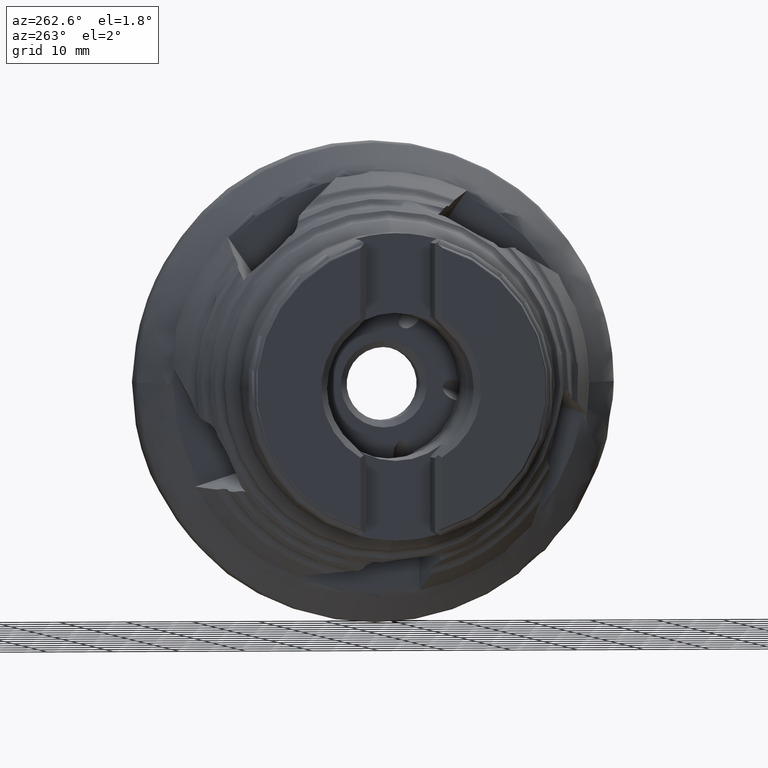
[diagram: clean part render]
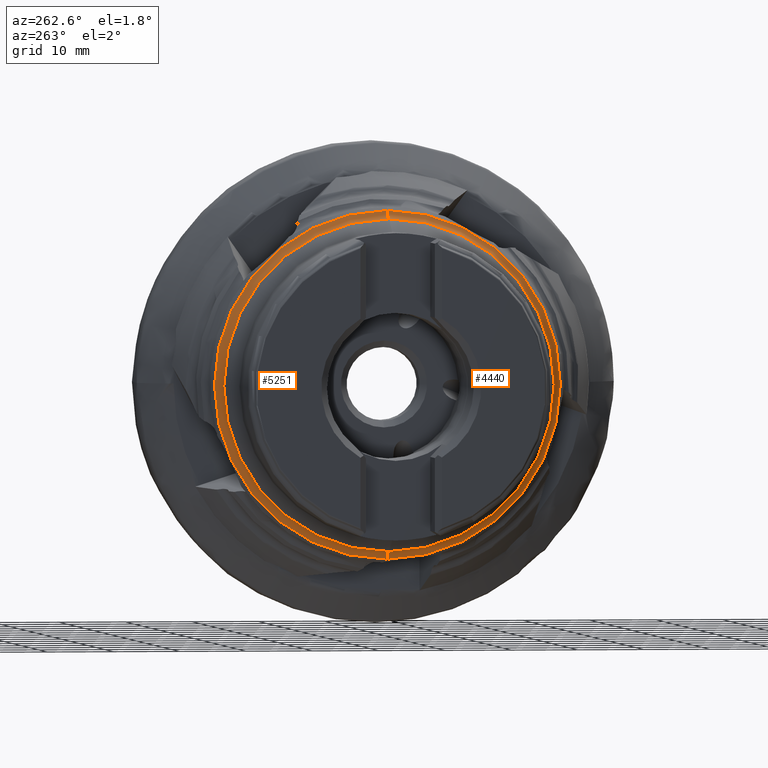
[diagram: same view with one multi-face feature highlighted, each face labeled with its STEP entity id]
A machine part, auxiliary view. The highlighted faces form ONE feature: a constant-radius fillet chain: 2 tangent blend faces with common blend radius 1.5 mm. The faces share edges in the B-rep.
Their STEP definitions:
[1] entity #4440 (Torus):
#153 = CARTESIAN_POINT ( 'NONE',  ( -24.57434516386887000, 3.046841316255686500E-015, 24.87934740348822200 ) ) ;
#503 = AXIS2_PLACEMENT_3D ( 'NONE', #6978, #5183, #3905 ) ;
#533 = CIRCLE ( 'NONE', #6831, 1.499999999999994400 ) ;
#620 = CARTESIAN_POINT ( 'NONE',  ( -24.57434516386887000, 3.230538336127788800E-015, 26.37934740348821400 ) ) ;
#831 = DIRECTION ( 'NONE',  ( 0.0000000000000000000, 0.0000000000000000000, -1.000000000000000000 ) ) ;
#887 = ORIENTED_EDGE ( 'NONE', *, *, #2133, .T. ) ;
#951 = CARTESIAN_POINT ( 'NONE',  ( -24.57434516386887000, 0.0000000000000000000, 0.0000000000000000000 ) ) ;
#1005 = VERTEX_POINT ( 'NONE', #153 ) ;
#1013 = VERTEX_POINT ( 'NONE', #4459 ) ;
#1166 = DIRECTION ( 'NONE',  ( 1.000000000000000000, -0.0000000000000000000, -0.0000000000000000000 ) ) ;
#1268 = ORIENTED_EDGE ( 'NONE', *, *, #5620, .T. ) ;
#1304 = DIRECTION ( 'NONE',  ( 0.0000000000000000000, 1.000000000000000000, -1.224646799147353200E-016 ) ) ;
#2133 = EDGE_CURVE ( 'NONE', #1013, #1005, #533, .T. ) ;
#2199 = CIRCLE ( 'NONE', #4613, 24.87934740348822200 ) ;
#2201 = ORIENTED_EDGE ( 'NONE', *, *, #7736, .F. ) ;
#2392 = CIRCLE ( 'NONE', #503, 1.499999999999994400 ) ;
#2519 = DIRECTION ( 'NONE',  ( 0.0000000000000000000, 0.0000000000000000000, -1.000000000000000000 ) ) ;
#2718 = VERTEX_POINT ( 'NONE', #7846 ) ;
#2840 = DIRECTION ( 'NONE',  ( 1.000000000000000000, -0.0000000000000000000, -0.0000000000000000000 ) ) ;
#3377 = AXIS2_PLACEMENT_3D ( 'NONE', #4285, #1166, #2519 ) ;
#3503 = DIRECTION ( 'NONE',  ( 0.0000000000000000000, 0.0000000000000000000, -1.000000000000000000 ) ) ;
#3905 = DIRECTION ( 'NONE',  ( 0.0000000000000000000, 0.0000000000000000000, -1.000000000000000000 ) ) ;
#4073 = AXIS2_PLACEMENT_3D ( 'NONE', #7084, #6492, #831 ) ;
#4134 = FACE_OUTER_BOUND ( 'NONE', #6457, .T. ) ;
#4285 = CARTESIAN_POINT ( 'NONE',  ( -24.57434516386887000, 0.0000000000000000000, 0.0000000000000000000 ) ) ;
#4440 = ADVANCED_FACE ( 'NONE', ( #4134 ), #6503, .F. ) ;
#4459 = CARTESIAN_POINT ( 'NONE',  ( -23.10400000000000600, 3.228893845991298400E-015, 26.08255606418158100 ) ) ;
#4613 = AXIS2_PLACEMENT_3D ( 'NONE', #951, #2840, #3503 ) ;
#4923 = VERTEX_POINT ( 'NONE', #5304 ) ;
#5080 = EDGE_CURVE ( 'NONE', #2718, #4923, #2392, .T. ) ;
#5183 = DIRECTION ( 'NONE',  ( -0.0000000000000000000, -1.000000000000000000, -0.0000000000000000000 ) ) ;
#5304 = CARTESIAN_POINT ( 'NONE',  ( -24.57434516386887000, 0.0000000000000000000, -24.87934740348822200 ) ) ;
#5620 = EDGE_CURVE ( 'NONE', #1005, #4923, #2199, .T. ) ;
#6457 = EDGE_LOOP ( 'NONE', ( #887, #1268, #8117, #2201 ) ) ;
#6492 = DIRECTION ( 'NONE',  ( 1.000000000000000000, -0.0000000000000000000, -0.0000000000000000000 ) ) ;
#6503 = TOROIDAL_SURFACE ( 'NONE', #3377, 26.37934740348821400, 1.499999999999994900 ) ;
#6773 = CIRCLE ( 'NONE', #4073, 26.08255606418158100 ) ;
#6831 = AXIS2_PLACEMENT_3D ( 'NONE', #620, #1304, #6979 ) ;
#6978 = CARTESIAN_POINT ( 'NONE',  ( -24.57434516386887000, 0.0000000000000000000, -26.37934740348821400 ) ) ;
#6979 = DIRECTION ( 'NONE',  ( 0.0000000000000000000, 1.224646799147352500E-016, 1.000000000000000000 ) ) ;
#7084 = CARTESIAN_POINT ( 'NONE',  ( -23.10400000000000600, 0.0000000000000000000, 0.0000000000000000000 ) ) ;
#7736 = EDGE_CURVE ( 'NONE', #1013, #2718, #6773, .T. ) ;
#7846 = CARTESIAN_POINT ( 'NONE',  ( -23.10400000000000600, 0.0000000000000000000, -26.08255606418158100 ) ) ;
#8117 = ORIENTED_EDGE ( 'NONE', *, *, #5080, .F. ) ;
[2] entity #5251 (Torus):
#153 = CARTESIAN_POINT ( 'NONE',  ( -24.57434516386887000, 3.046841316255686500E-015, 24.87934740348822200 ) ) ;
#160 = DIRECTION ( 'NONE',  ( 0.0000000000000000000, 0.0000000000000000000, -1.000000000000000000 ) ) ;
#503 = AXIS2_PLACEMENT_3D ( 'NONE', #6978, #5183, #3905 ) ;
#533 = CIRCLE ( 'NONE', #6831, 1.499999999999994400 ) ;
#620 = CARTESIAN_POINT ( 'NONE',  ( -24.57434516386887000, 3.230538336127788800E-015, 26.37934740348821400 ) ) ;
#655 = AXIS2_PLACEMENT_3D ( 'NONE', #1572, #2282, #1601 ) ;
#718 = AXIS2_PLACEMENT_3D ( 'NONE', #6418, #6330, #3865 ) ;
#1005 = VERTEX_POINT ( 'NONE', #153 ) ;
#1013 = VERTEX_POINT ( 'NONE', #4459 ) ;
#1304 = DIRECTION ( 'NONE',  ( 0.0000000000000000000, 1.000000000000000000, -1.224646799147353200E-016 ) ) ;
#1572 = CARTESIAN_POINT ( 'NONE',  ( -24.57434516386887000, 0.0000000000000000000, 0.0000000000000000000 ) ) ;
#1601 = DIRECTION ( 'NONE',  ( 0.0000000000000000000, 0.0000000000000000000, -1.000000000000000000 ) ) ;
#2024 = EDGE_LOOP ( 'NONE', ( #6246, #2362, #3554, #6262 ) ) ;
#2133 = EDGE_CURVE ( 'NONE', #1013, #1005, #533, .T. ) ;
#2282 = DIRECTION ( 'NONE',  ( 1.000000000000000000, -0.0000000000000000000, -0.0000000000000000000 ) ) ;
#2362 = ORIENTED_EDGE ( 'NONE', *, *, #4703, .T. ) ;
#2392 = CIRCLE ( 'NONE', #503, 1.499999999999994400 ) ;
#2718 = VERTEX_POINT ( 'NONE', #7846 ) ;
#3554 = ORIENTED_EDGE ( 'NONE', *, *, #2133, .F. ) ;
#3865 = DIRECTION ( 'NONE',  ( 0.0000000000000000000, 0.0000000000000000000, -1.000000000000000000 ) ) ;
#3898 = DIRECTION ( 'NONE',  ( 1.000000000000000000, -0.0000000000000000000, -0.0000000000000000000 ) ) ;
#3905 = DIRECTION ( 'NONE',  ( 0.0000000000000000000, 0.0000000000000000000, -1.000000000000000000 ) ) ;
#3907 = FACE_OUTER_BOUND ( 'NONE', #2024, .T. ) ;
#4182 = EDGE_CURVE ( 'NONE', #2718, #1013, #5002, .T. ) ;
#4459 = CARTESIAN_POINT ( 'NONE',  ( -23.10400000000000600, 3.228893845991298400E-015, 26.08255606418158100 ) ) ;
#4703 = EDGE_CURVE ( 'NONE', #4923, #1005, #4821, .T. ) ;
#4821 = CIRCLE ( 'NONE', #655, 24.87934740348822200 ) ;
#4923 = VERTEX_POINT ( 'NONE', #5304 ) ;
#5002 = CIRCLE ( 'NONE', #718, 26.08255606418158100 ) ;
#5080 = EDGE_CURVE ( 'NONE', #2718, #4923, #2392, .T. ) ;
#5183 = DIRECTION ( 'NONE',  ( -0.0000000000000000000, -1.000000000000000000, -0.0000000000000000000 ) ) ;
#5251 = ADVANCED_FACE ( 'NONE', ( #3907 ), #7372, .F. ) ;
#5304 = CARTESIAN_POINT ( 'NONE',  ( -24.57434516386887000, 0.0000000000000000000, -24.87934740348822200 ) ) ;
#6246 = ORIENTED_EDGE ( 'NONE', *, *, #5080, .T. ) ;
#6262 = ORIENTED_EDGE ( 'NONE', *, *, #4182, .F. ) ;
#6330 = DIRECTION ( 'NONE',  ( 1.000000000000000000, -0.0000000000000000000, -0.0000000000000000000 ) ) ;
#6418 = CARTESIAN_POINT ( 'NONE',  ( -23.10400000000000600, 0.0000000000000000000, 0.0000000000000000000 ) ) ;
#6831 = AXIS2_PLACEMENT_3D ( 'NONE', #620, #1304, #6979 ) ;
#6978 = CARTESIAN_POINT ( 'NONE',  ( -24.57434516386887000, 0.0000000000000000000, -26.37934740348821400 ) ) ;
#6979 = DIRECTION ( 'NONE',  ( 0.0000000000000000000, 1.224646799147352500E-016, 1.000000000000000000 ) ) ;
#7372 = TOROIDAL_SURFACE ( 'NONE', #8000, 26.37934740348821400, 1.499999999999994900 ) ;
#7672 = CARTESIAN_POINT ( 'NONE',  ( -24.57434516386887000, 0.0000000000000000000, 0.0000000000000000000 ) ) ;
#7846 = CARTESIAN_POINT ( 'NONE',  ( -23.10400000000000600, 0.0000000000000000000, -26.08255606418158100 ) ) ;
#8000 = AXIS2_PLACEMENT_3D ( 'NONE', #7672, #3898, #160 ) ;